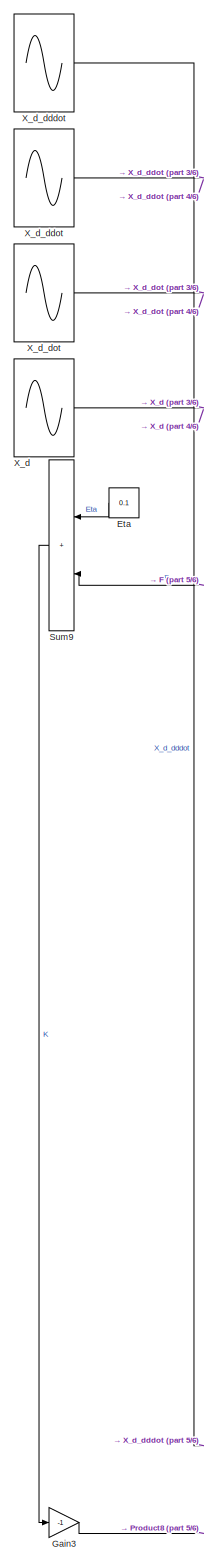
[diagram: root canvas - part 1/6, left side, full height]
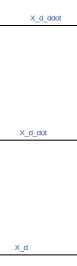
[diagram: root canvas - part 2/6, top center region]
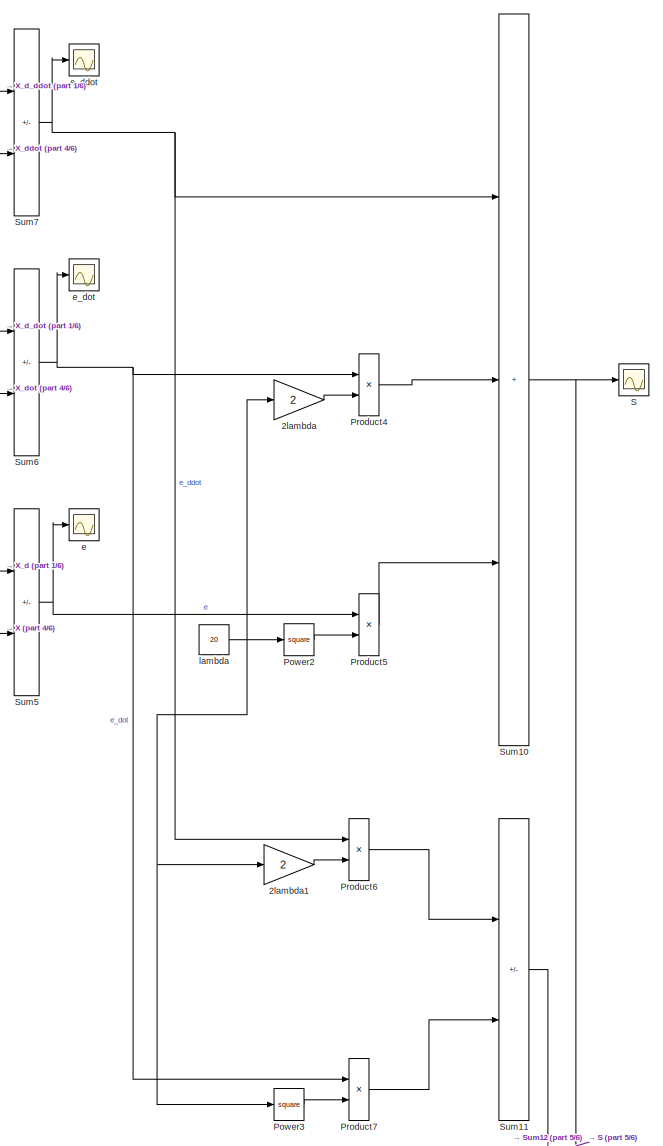
[diagram: root canvas - part 3/6, middle right region]
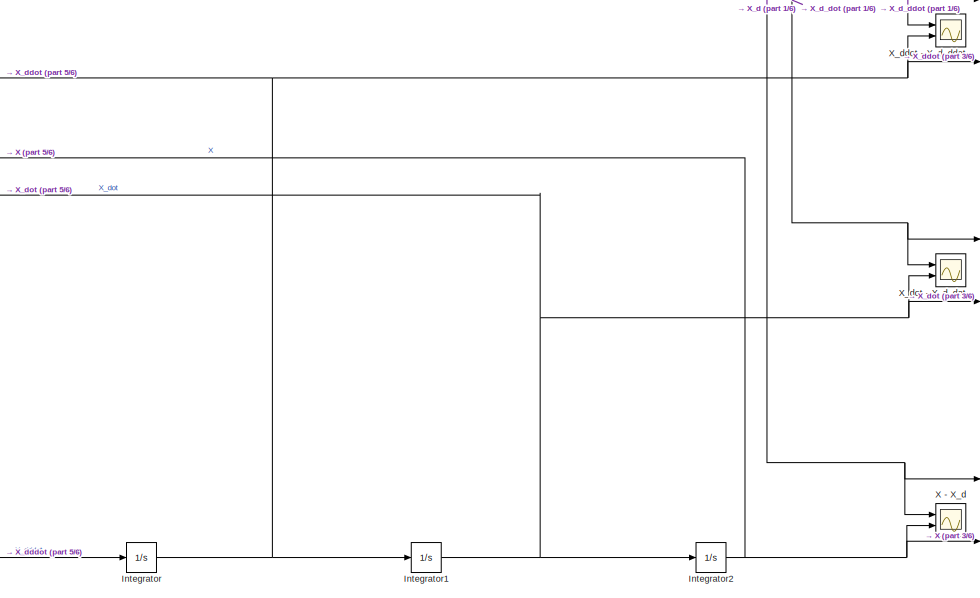
[diagram: root canvas - part 4/6, central region]
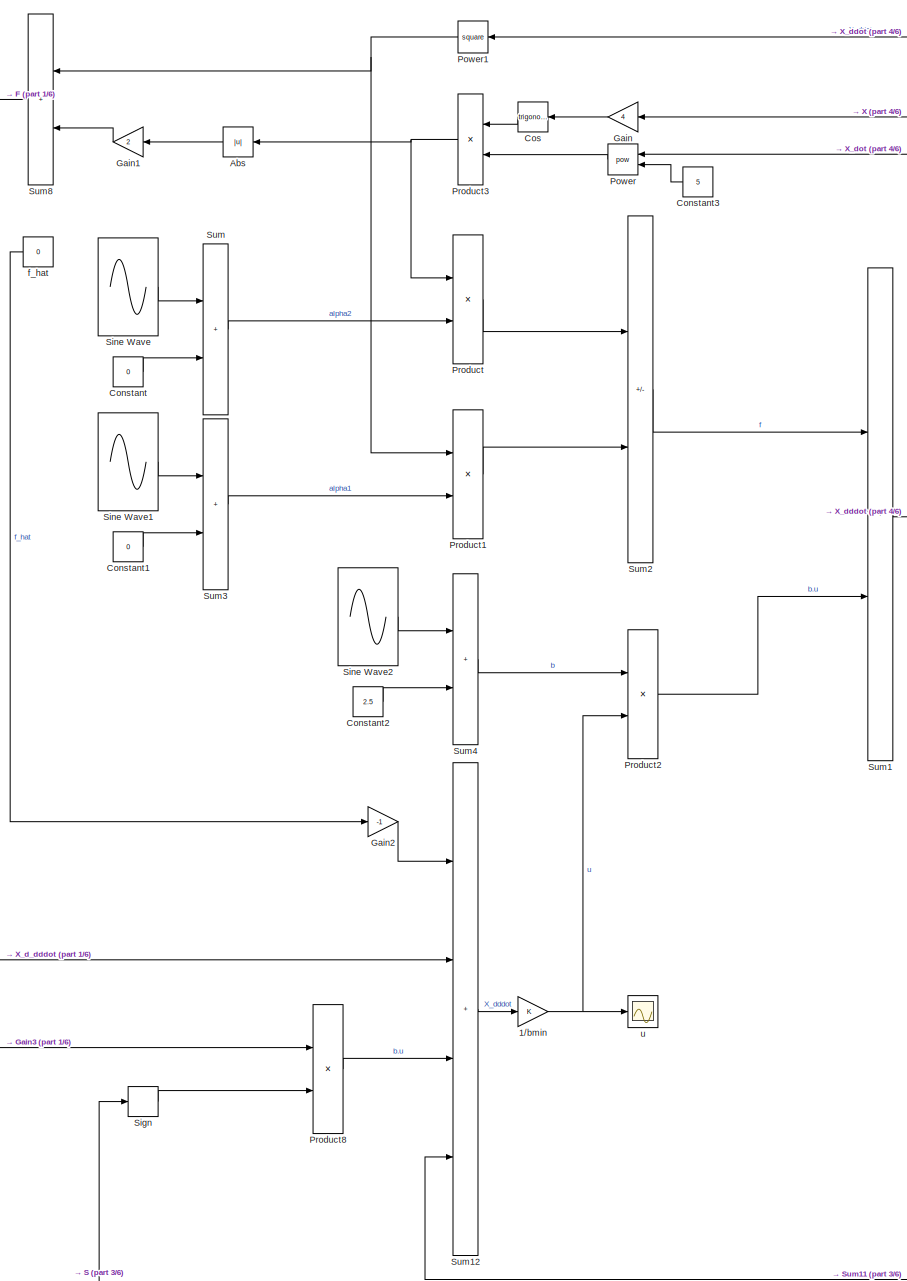
[diagram: root canvas - part 5/6, middle left region]
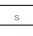
[diagram: root canvas - part 6/6, bottom center region]
MODEL slx_05014e0acd03
KIND model
CONFIG AbsTol = auto
CONFIG EnableMultiTasking = off
CONFIG FixedStep = auto
CONFIG MaxStep = auto
CONFIG MinStep = auto
CONFIG RelTol = 1e-3
CONFIG SampleTimeConstraint = Unconstrained
CONFIG SolverName = VariableStepAuto
CONFIG StartTime = 0.0
CONFIG StopTime = 10.0
BLOCK [Gain] 1//bmin
  Multiplication = Matrix(K*u)
BLOCK [Gain] 2lambda
  Gain = 2
  Multiplication = Matrix(K*u)
BLOCK [Gain] 2lambda1
  Gain = 2
  Multiplication = Matrix(K*u)
BLOCK [Abs] Abs
  NameLocation = top
  SaturateOnIntegerOverflow = off
BLOCK [Constant] Constant
  Value = 0
BLOCK [Constant] Constant1
  Value = 0
BLOCK [Constant] Constant2
  Value = 2.5
BLOCK [Constant] Constant3
  NameLocation = top
  Value = 5
BLOCK [Trigonometry] Cos
  NameLocation = top
  Ports = [1, 1]
BLOCK [Constant] Eta
  NameLocation = top
  Value = 0.1
BLOCK [Gain] Gain
  Gain = 4
  Multiplication = Matrix(K*u)
  NameLocation = top
BLOCK [Gain] Gain1
  Gain = 2
  Multiplication = Matrix(K*u)
  NameLocation = top
BLOCK [Gain] Gain2
  Gain = -1
  Multiplication = Matrix(K*u)
BLOCK [Gain] Gain3
  Gain = -1
  Multiplication = Matrix(K*u)
BLOCK [Integrator] Integrator
  Ports = [1, 1]
BLOCK [Integrator] Integrator1
  Ports = [1, 1]
BLOCK [Integrator] Integrator2
  Ports = [1, 1]
BLOCK [Math] Power
  NameLocation = top
  Operator = pow
  Ports = [2, 1]
BLOCK [Math] Power1
  NameLocation = top
  Operator = square
  Ports = [1, 1]
BLOCK [Math] Power2
  Operator = square
  Ports = [1, 1]
BLOCK [Math] Power3
  Operator = square
  Ports = [1, 1]
BLOCK [Product] Product
  Ports = [2, 1]
BLOCK [Product] Product1
  Ports = [2, 1]
BLOCK [Product] Product2
  Ports = [2, 1]
BLOCK [Product] Product3
  NameLocation = top
  Ports = [2, 1]
BLOCK [Product] Product4
  Ports = [2, 1]
BLOCK [Product] Product5
  Ports = [2, 1]
BLOCK [Product] Product6
  Ports = [2, 1]
BLOCK [Product] Product7
  Ports = [2, 1]
BLOCK [Product] Product8
  Ports = [2, 1]
BLOCK [Scope] S
  Floating = off
  NumInputPorts = 1
  Ports = [1]
  ScopeSpecificationString = Simulink.scopes.TimeScopeBlockCfg('CurrentConfiguration', extmgr.ConfigurationSet(extmgr.Configuration('Core','General UI',true),extmgr.Configuration('Core','Source UI',true),extmgr.Configuration('Sources','WiredSimulink',true,'DataLoggingVariableName','ScopeData7'),extmgr.Configuration('Visuals','Time Domain',true,'SerializedDisplays',{struct('MinYLimReal','-70.76208','MaxYLimReal','8.54015','YLa...<+1364ch>
BLOCK [Signum] Sign
BLOCK [Sin] Sine Wave
  Amplitude = 2
  Ports = [0, 1]
  SampleTime = 0
BLOCK [Sin] Sine Wave1
  Ports = [0, 1]
  SampleTime = 0
BLOCK [Sin] Sine Wave2
  Amplitude = 1.5
  Ports = [0, 1]
  SampleTime = 0
BLOCK [Sum] Sum
  IconShape = rectangular
  Ports = [2, 1]
BLOCK [Sum] Sum1
  IconShape = rectangular
  Ports = [2, 1]
BLOCK [Sum] Sum10
  IconShape = rectangular
  Inputs = +++
  Ports = [3, 1]
BLOCK [Sum] Sum11
  IconShape = rectangular
  Inputs = --
  Ports = [2, 1]
BLOCK [Sum] Sum12
  IconShape = rectangular
  Inputs = ++++
  Ports = [4, 1]
BLOCK [Sum] Sum2
  IconShape = rectangular
  Inputs = --
  Ports = [2, 1]
BLOCK [Sum] Sum3
  IconShape = rectangular
  Ports = [2, 1]
BLOCK [Sum] Sum4
  IconShape = rectangular
  Ports = [2, 1]
BLOCK [Sum] Sum5
  IconShape = rectangular
  Inputs = -+
  Ports = [2, 1]
BLOCK [Sum] Sum6
  IconShape = rectangular
  Inputs = -+
  Ports = [2, 1]
BLOCK [Sum] Sum7
  IconShape = rectangular
  Inputs = -+
  Ports = [2, 1]
BLOCK [Sum] Sum8
  IconShape = rectangular
  NameLocation = top
  Ports = [2, 1]
BLOCK [Sum] Sum9
  IconShape = rectangular
  NameLocation = top
  Ports = [2, 1]
BLOCK [Scope] X - X_d
  Floating = off
  NumInputPorts = 2
  Ports = [2]
  ScopeSpecificationString = Simulink.scopes.TimeScopeBlockCfg('CurrentConfiguration', extmgr.ConfigurationSet(extmgr.Configuration('Core','General UI',true),extmgr.Configuration('Core','Source UI',true),extmgr.Configuration('Sources','WiredSimulink',true,'DataLoggingVariableName','ScopeData1'),extmgr.Configuration('Visuals','Time Domain',true,'SerializedDisplays',{struct('MinYLimReal','-1.32105','MaxYLimReal','1.25789','YLab...<+1366ch>
BLOCK [Sin] X_d
  Frequency = pi/2
  Ports = [0, 1]
  SampleTime = 0
BLOCK [Sin] X_d_dddot
  Amplitude = -(pi^3)/8
  Frequency = pi/2
  Phase = pi/2
  Ports = [0, 1]
  SampleTime = 0
BLOCK [Sin] X_d_ddot
  Amplitude = -(pi^2)/4
  Frequency = pi/2
  Ports = [0, 1]
  SampleTime = 0
BLOCK [Sin] X_d_dot
  Amplitude = pi/2
  Frequency = pi/2
  Phase = pi/2
  Ports = [0, 1]
  SampleTime = 0
BLOCK [Scope] X_ddot - X_d_ddot
  Floating = off
  NumInputPorts = 2
  Ports = [2]
  ScopeSpecificationString = Simulink.scopes.TimeScopeBlockCfg('CurrentConfiguration', extmgr.ConfigurationSet(extmgr.Configuration('Core','General UI',true),extmgr.Configuration('Core','Source UI',true),extmgr.Configuration('Sources','WiredSimulink',true,'DataLoggingVariableName','ScopeData2'),extmgr.Configuration('Visuals','Time Domain',true,'SerializedDisplays',{struct('MinYLimReal','-5.3324','MaxYLimReal','22.10863','YLab...<+1378ch>
BLOCK [Scope] X_dot - X_d_dot
  Floating = off
  NumInputPorts = 2
  Ports = [2]
  ScopeSpecificationString = Simulink.scopes.TimeScopeBlockCfg('CurrentConfiguration', extmgr.ConfigurationSet(extmgr.Configuration('Core','General UI',true),extmgr.Configuration('Core','Source UI',true),extmgr.Configuration('Sources','WiredSimulink',true),extmgr.Configuration('Visuals','Time Domain',true,'SerializedDisplays',{struct('MinYLimReal','-1.96525','MaxYLimReal','1.97927','YLabelReal','','MinYLimMag','0.00000','MaxY...<+1335ch>
BLOCK [Scope] e
  Floating = off
  NumInputPorts = 1
  Ports = [1]
  ScopeSpecificationString = Simulink.scopes.TimeScopeBlockCfg('CurrentConfiguration', extmgr.ConfigurationSet(extmgr.Configuration('Core','General UI',true),extmgr.Configuration('Core','Source UI',true),extmgr.Configuration('Sources','WiredSimulink',true,'DataLoggingVariableName','ScopeData5'),extmgr.Configuration('Visuals','Time Domain',true,'SerializedDisplays',{struct('MinYLimReal','-0.12145','MaxYLimReal','0.01417','YLab...<+1360ch>
BLOCK [Scope] e_ddot
  Floating = off
  NumInputPorts = 1
  Ports = [1]
  ScopeSpecificationString = Simulink.scopes.TimeScopeBlockCfg('CurrentConfiguration', extmgr.ConfigurationSet(extmgr.Configuration('Core','General UI',true),extmgr.Configuration('Core','Source UI',true),extmgr.Configuration('Sources','WiredSimulink',true,'DataLoggingVariableName','ScopeData3'),extmgr.Configuration('Visuals','Time Domain',true,'SerializedDisplays',{struct('MinYLimReal','-2.82048','MaxYLimReal','22.01161','YLa...<+1369ch>
BLOCK [Scope] e_dot
  Floating = off
  NumInputPorts = 1
  Ports = [1]
  ScopeSpecificationString = Simulink.scopes.TimeScopeBlockCfg('CurrentConfiguration', extmgr.ConfigurationSet(extmgr.Configuration('Core','General UI',true),extmgr.Configuration('Core','Source UI',true),extmgr.Configuration('Sources','WiredSimulink',true,'DataLoggingVariableName','ScopeData4'),extmgr.Configuration('Visuals','Time Domain',true,'SerializedDisplays',{struct('MinYLimReal','-1.77457','MaxYLimReal','0.26314','YLab...<+1364ch>
BLOCK [Constant] f_hat
  NameLocation = top
  Value = 0
BLOCK [Constant] lambda
  Value = 20
BLOCK [Scope] u
  Floating = off
  NumInputPorts = 1
  Ports = [1]
  ScopeSpecificationString = Simulink.scopes.TimeScopeBlockCfg('CurrentConfiguration', extmgr.ConfigurationSet(extmgr.Configuration('Core','General UI',true),extmgr.Configuration('Core','Source UI',true),extmgr.Configuration('Sources','WiredSimulink',true,'DataLoggingVariableName','ScopeData6'),extmgr.Configuration('Visuals','Time Domain',true,'SerializedDisplays',{struct('MinYLimReal','-234.76769','MaxYLimReal','720.02168','...<+1374ch>
NET 1//bmin:1 -> Product2:2, u:1
LINE 2lambda1:1 -> Product6:2
LINE 2lambda:1 -> Product4:2
LINE Abs:1 -> Gain1:1
LINE Constant1:1 -> Sum3:2
LINE Constant2:1 -> Sum4:2
LINE Constant3:1 -> Power:2
LINE Constant:1 -> Sum:2
LINE Cos:1 -> Product3:1
LINE Eta:1 -> Sum9:1
LINE Gain1:1 -> Sum8:2
LINE Gain2:1 -> Sum12:1
LINE Gain3:1 -> Product8:1
LINE Gain:1 -> Cos:1
NET Integrator1:1 -> Integrator2:1, Power:1, Sum6:2, X_dot - X_d_dot:2
NET Integrator2:1 -> Gain:1, Sum5:2, X - X_d:2
NET Integrator:1 -> Integrator1:1, Power1:1, Sum7:2, X_ddot - X_d_ddot:2
NET Power1:1 -> Product1:1, Sum8:1
LINE Power2:1 -> Product5:2
LINE Power3:1 -> Product7:2
LINE Power:1 -> Product3:2
LINE Product1:1 -> Sum2:2
LINE Product2:1 -> Sum1:2
NET Product3:1 -> Abs:1, Product:1
LINE Product4:1 -> Sum10:2
LINE Product5:1 -> Sum10:3
LINE Product6:1 -> Sum11:1
LINE Product7:1 -> Sum11:2
LINE Product8:1 -> Sum12:3
LINE Product:1 -> Sum2:1
LINE Sign:1 -> Product8:2
LINE Sine Wave1:1 -> Sum3:1
LINE Sine Wave2:1 -> Sum4:1
LINE Sine Wave:1 -> Sum:1
NET Sum10:1 -> S:1, Sign:1
LINE Sum11:1 -> Sum12:4
LINE Sum12:1 -> 1//bmin:1
LINE Sum1:1 -> Integrator:1
LINE Sum2:1 -> Sum1:1
LINE Sum3:1 -> Product1:2
LINE Sum4:1 -> Product2:1
NET Sum5:1 -> Product5:1, e:1
NET Sum6:1 -> Product4:1, Product7:1, e_dot:1
NET Sum7:1 -> Product6:1, Sum10:1, e_ddot:1
LINE Sum8:1 -> Sum9:2
LINE Sum9:1 -> Gain3:1
LINE Sum:1 -> Product:2
NET X_d:1 -> Sum5:1, X - X_d:1
LINE X_d_dddot:1 -> Sum12:2
NET X_d_ddot:1 -> Sum7:1, X_ddot - X_d_ddot:1
NET X_d_dot:1 -> Sum6:1, X_dot - X_d_dot:1
LINE f_hat:1 -> Gain2:1
NET lambda:1 -> 2lambda1:1, 2lambda:1, Power2:1, Power3:1
note: NET lines group one-source signal fan-out (src -> all destinations, sorted); 1:1 wires keep LINE
